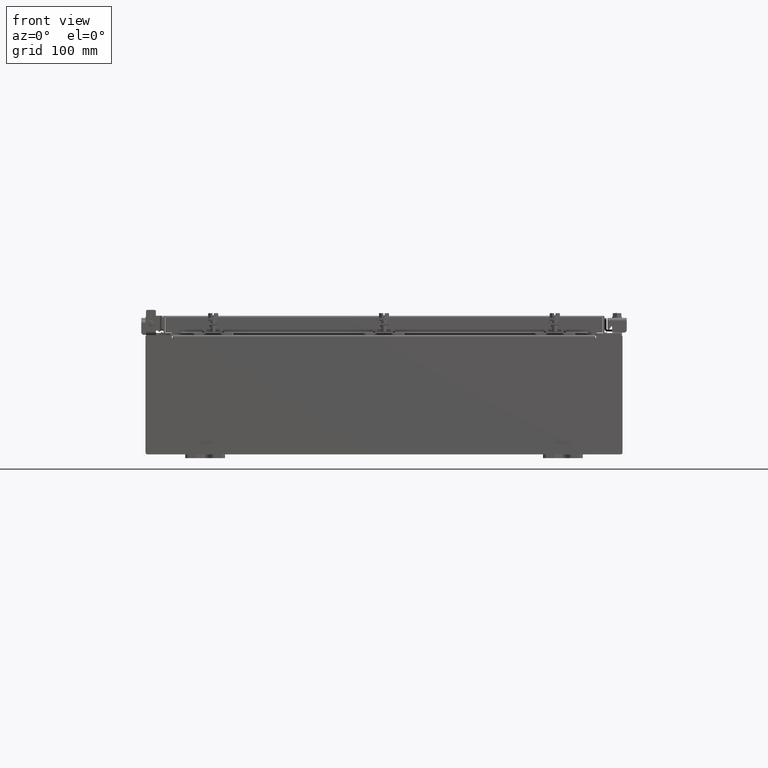
[diagram: clean part render]
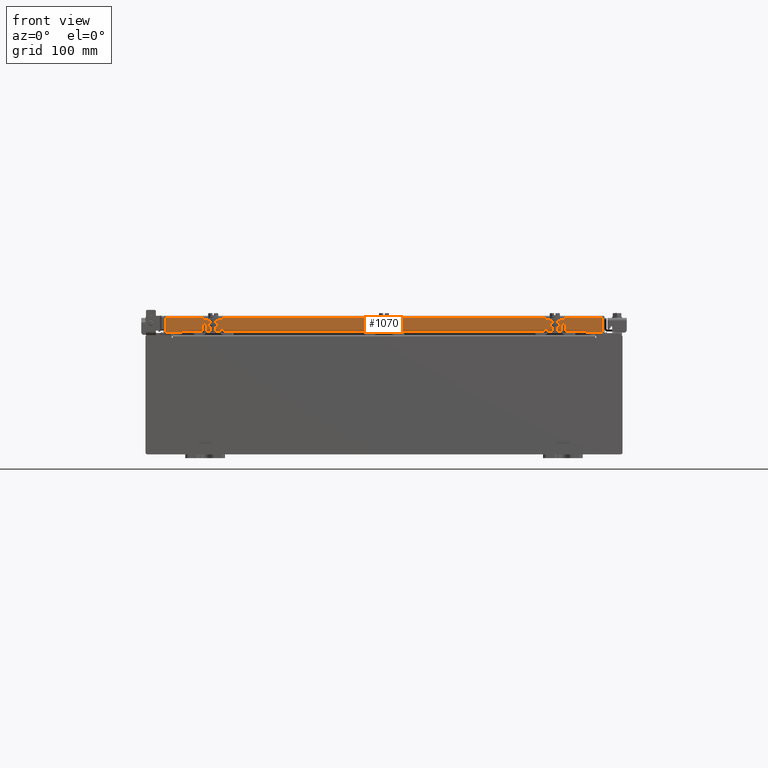
[diagram: same view with one face highlighted and labeled with its STEP entity id]
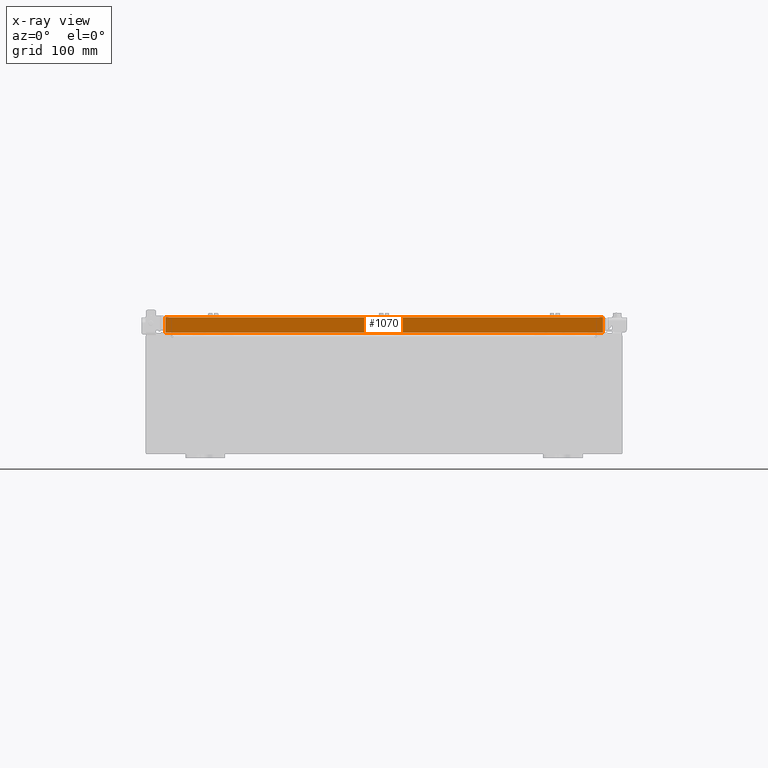
[diagram: x-ray of the same camera — body ghosted, the highlighted face saturated]
A machine part, front view. The second image highlights one B-rep face of the part: STEP entity #1070.
The next image is the same camera in x-ray: the body ghosted, the highlighted face saturated — about 0% of this face is hidden behind the body in this view.
In plain terms, the highlighted planar face has unit normal (-0, 1, -0).
Its self-contained STEP definition (entity closure, byte-faithful):
#889 = ORIENTED_EDGE ( 'NONE', *, *, #21120, .F. ) ;
#1048 = CARTESIAN_POINT ( 'NONE',  ( -11.00515786437627100, -11.09400000000000100, 3.168943672650545400E-014 ) ) ;
#1070 = ADVANCED_FACE ( 'NONE', ( #3566 ), #11596, .F. ) ;
#1094 = VERTEX_POINT ( 'NONE', #4177 ) ;
#1264 = CARTESIAN_POINT ( 'NONE',  ( -10.25515786437626900, -11.09400000000000100, -0.8500000000000020900 ) ) ;
#1482 = DIRECTION ( 'NONE',  ( -1.000000000000000000, 4.379057701015054300E-047, 1.231227687788112800E-016 ) ) ;
#1609 = EDGE_LOOP ( 'NONE', ( #3645, #2920, #19729, #11564, #889, #2531 ) ) ;
#1641 = CARTESIAN_POINT ( 'NONE',  ( 0.0000000000000000000, -11.09400000000000100, 3.168943672650545400E-014 ) ) ;
#1665 = DIRECTION ( 'NONE',  ( -3.470684265319587400E-031, 1.000000000000000000, -2.818880942772360100E-015 ) ) ;
#1718 = DIRECTION ( 'NONE',  ( 0.0000000000000000000, 2.818880942772360100E-015, 1.000000000000000000 ) ) ;
#2347 = VERTEX_POINT ( 'NONE', #19092 ) ;
#2414 = LINE ( 'NONE', #21683, #16307 ) ;
#2531 = ORIENTED_EDGE ( 'NONE', *, *, #9083, .F. ) ;
#2624 = DIRECTION ( 'NONE',  ( -0.0000000000000000000, -2.818880942772360100E-015, -1.000000000000000000 ) ) ;
#2669 = AXIS2_PLACEMENT_3D ( 'NONE', #1641, #1665, #1718 ) ;
#2701 = LINE ( 'NONE', #17405, #11463 ) ;
#2779 = DIRECTION ( 'NONE',  ( 0.0000000000000000000, -2.818880942772360100E-015, -1.000000000000000000 ) ) ;
#2920 = ORIENTED_EDGE ( 'NONE', *, *, #9119, .T. ) ;
#3566 = FACE_OUTER_BOUND ( 'NONE', #1609, .T. ) ;
#3645 = ORIENTED_EDGE ( 'NONE', *, *, #8569, .F. ) ;
#3786 = LINE ( 'NONE', #20090, #21841 ) ;
#3802 = VECTOR ( 'NONE', #10118, 39.37007874015748100 ) ;
#3908 = CARTESIAN_POINT ( 'NONE',  ( 11.00515786437626200, -11.09400000000000300, -0.8499999999999999800 ) ) ;
#4077 = CARTESIAN_POINT ( 'NONE',  ( 11.00515786437626200, -11.09400000000000100, -0.08770000000000026400 ) ) ;
#4177 = CARTESIAN_POINT ( 'NONE',  ( -11.00515786437626900, -11.09400000000000300, -0.8499999999999966500 ) ) ;
#4189 = DIRECTION ( 'NONE',  ( -1.000000000000000000, 0.0000000000000000000, 0.0000000000000000000 ) ) ;
#4456 = VERTEX_POINT ( 'NONE', #7828 ) ;
#7828 = CARTESIAN_POINT ( 'NONE',  ( 10.25515786437626000, -11.09400000000000100, -0.8500000000000020900 ) ) ;
#8569 = EDGE_CURVE ( 'NONE', #2347, #13645, #13148, .T. ) ;
#9083 = EDGE_CURVE ( 'NONE', #13645, #15623, #3786, .T. ) ;
#9119 = EDGE_CURVE ( 'NONE', #2347, #1094, #17173, .T. ) ;
#9692 = EDGE_CURVE ( 'NONE', #15972, #1094, #2701, .T. ) ;
#9983 = EDGE_CURVE ( 'NONE', #4456, #15972, #2414, .T. ) ;
#10118 = DIRECTION ( 'NONE',  ( 1.000000000000000000, 3.470684265319588300E-031, -9.460278716967662300E-046 ) ) ;
#11463 = VECTOR ( 'NONE', #13983, 39.37007874015748100 ) ;
#11564 = ORIENTED_EDGE ( 'NONE', *, *, #9983, .F. ) ;
#11596 = PLANE ( 'NONE',  #2669 ) ;
#13016 = VECTOR ( 'NONE', #1482, 39.37007874015748100 ) ;
#13148 = LINE ( 'NONE', #13640, #3802 ) ;
#13640 = CARTESIAN_POINT ( 'NONE',  ( 11.09399999999999200, -11.09400000000000100, -0.08770000000000026400 ) ) ;
#13645 = VERTEX_POINT ( 'NONE', #4077 ) ;
#13983 = DIRECTION ( 'NONE',  ( -1.000000000000000000, 4.379057701015054300E-047, 1.231227687788112800E-016 ) ) ;
#15623 = VERTEX_POINT ( 'NONE', #3908 ) ;
#15972 = VERTEX_POINT ( 'NONE', #1264 ) ;
#16307 = VECTOR ( 'NONE', #4189, 39.37007874015748100 ) ;
#17173 = LINE ( 'NONE', #1048, #17725 ) ;
#17405 = CARTESIAN_POINT ( 'NONE',  ( 11.09399999999999200, -11.09400000000000300, -0.8499999999999999800 ) ) ;
#17725 = VECTOR ( 'NONE', #2779, 39.37007874015748100 ) ;
#19092 = CARTESIAN_POINT ( 'NONE',  ( -11.00515786437626900, -11.09400000000000100, -0.08770000000000026400 ) ) ;
#19729 = ORIENTED_EDGE ( 'NONE', *, *, #9692, .F. ) ;
#20090 = CARTESIAN_POINT ( 'NONE',  ( 11.00515786437626200, -11.09400000000000100, -0.07470000000000015500 ) ) ;
#21120 = EDGE_CURVE ( 'NONE', #15623, #4456, #21737, .T. ) ;
#21683 = CARTESIAN_POINT ( 'NONE',  ( 10.25515786437626000, -11.09400000000000100, -0.8500000000000020900 ) ) ;
#21737 = LINE ( 'NONE', #22383, #13016 ) ;
#21841 = VECTOR ( 'NONE', #2624, 39.37007874015748100 ) ;
#22383 = CARTESIAN_POINT ( 'NONE',  ( 11.09399999999999200, -11.09400000000000300, -0.8499999999999999800 ) ) ;